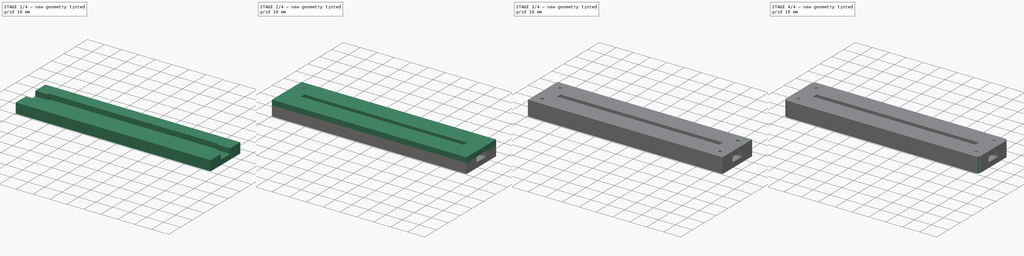
[diagram: build sequence overview — one tinted view per stage of 4, left to right]
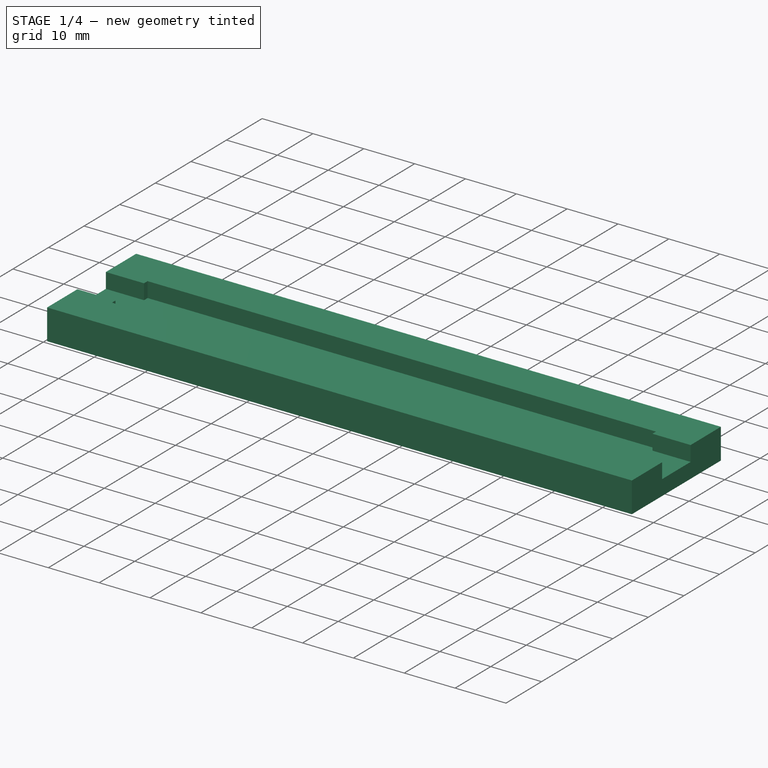
[diagram: stage 1 of 4 — iso view after this stage's code; geometry added in this stage tinted green]
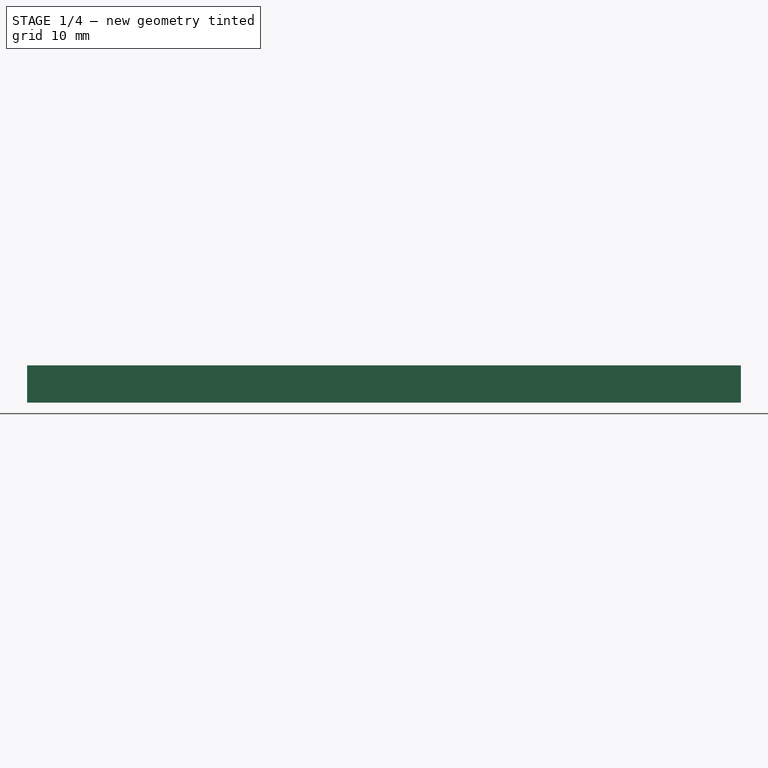
[diagram: stage 1 of 4 — front view after this stage's code; geometry added in this stage tinted green]
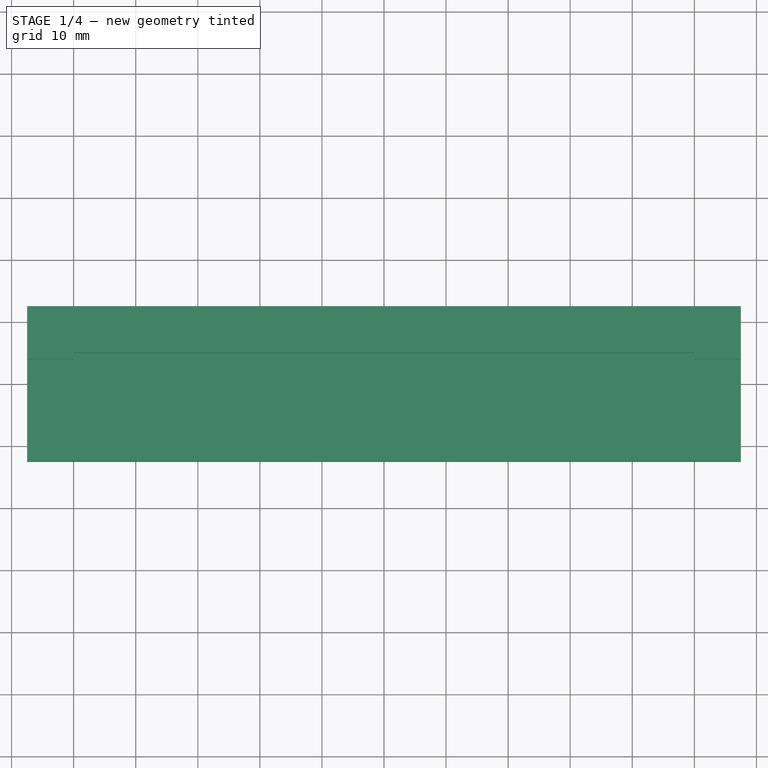
[diagram: stage 1 of 4 — top view after this stage's code; geometry added in this stage tinted green]
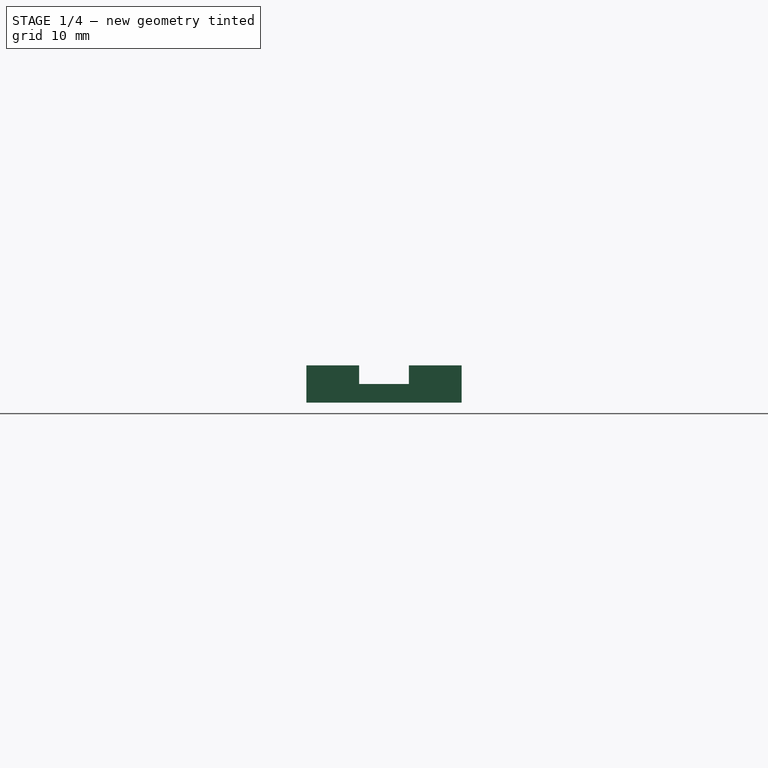
[diagram: stage 1 of 4 — right view after this stage's code; geometry added in this stage tinted green]
FCSTD DOCUMENT  (FreeCAD 0.17R13541 (Git))
Label: Acry-Base-6-good-sandwich-dialed-led-slots-small-screw-holes-rounded-bigger-more-screw-room-lily-tiny-hole
License: All rights reserved
LicenseURL: http://en.wikipedia.org/wiki/All_rights_reserved
objects: Sketcher::SketchObject×5, PartDesign::Pad×3, PartDesign::PolarPattern×3, PartDesign::Pocket×2, PartDesign::Fillet×1, PartDesign::Body×1, App::Part×1
note: 20 computed .brp shape members not serialized (recipe doc carries the construction recipe); baked Part::Feature solids carry a one-line shape summary decoded from their .brp

FEATURE [Sketcher::SketchObject] Sketch
  MapMode = 5
  Support = -> [XY_Plane001]
  sketch-geometry (6):
    g0: LineSegment StartX=-57.5 StartY=12.5 StartZ=0 EndX=57.5 EndY=12.5 EndZ=0
    g1: LineSegment StartX=57.5 StartY=12.5 StartZ=0 EndX=57.5 EndY=-12.5 EndZ=0
    g2: LineSegment StartX=57.5 StartY=-12.5 StartZ=0 EndX=-57.5 EndY=-12.5 EndZ=0
    g3: LineSegment StartX=-57.5 StartY=-12.5 StartZ=0 EndX=-57.5 EndY=12.5 EndZ=0
    g4: GeomPoint X=0 Y=12.5 Z=0
    g5: GeomPoint X=-57.5 Y=0 Z=0
  constraints (16):
    c: Coincident(g0,g1)
    c: Coincident(g1,g2)
    c: Coincident(g2,g3)
    c: Coincident(g3,g0)
    c: Horizontal(g0)
    c: Horizontal(g2)
    c: Vertical(g1)
    c: Vertical(g3)
    c: Distance(g0) = 115
    c: Distance(g1) = 25
    c: PointOnObject(g4,g0)
    c: PointOnObject(g5,g3)
    c: Symmetric(g0,g2,g5)
    c: Symmetric(g0,g0,g4)
    c: PointOnObject(g4,g-2)
    c: PointOnObject(g5,g-1)
FEATURE [PartDesign::Pad] Pad
  Length = 3
  Length2 = 100
  Profile = -> Sketch
  Type = 0
FEATURE [Sketcher::SketchObject] Sketch001
  ExternalGeometry = -> [Pad]
  MapMode = 5
  Placement = pos=(0,0,3) rot=(0,0,1;0rad)
  Support = -> [Pad]
  sketch-geometry (18):
    g0: LineSegment StartX=-57.5 StartY=12.5 StartZ=0 EndX=57.5 EndY=12.5 EndZ=0
    g1: LineSegment StartX=57.5 StartY=12.5 StartZ=0 EndX=57.5 EndY=4 EndZ=0
    g2: LineSegment StartX=-57.5 StartY=4 StartZ=0 EndX=-57.5 EndY=12.5 EndZ=0
    g3: LineSegment StartX=-57.5 StartY=-12.5 StartZ=0 EndX=57.5 EndY=-12.5 EndZ=0
    g4: LineSegment StartX=57.5 StartY=-12.5 StartZ=0 EndX=57.5 EndY=-4 EndZ=0
    g5: LineSegment StartX=-57.5 StartY=-4 StartZ=0 EndX=-57.5 EndY=-12.5 EndZ=0
    g6: LineSegment StartX=-57.5 StartY=-4 StartZ=0 EndX=-50 EndY=-4 EndZ=0
    g7: LineSegment StartX=-50 StartY=-4 StartZ=0 EndX=-50 EndY=-5 EndZ=0
    g8: LineSegment StartX=-50 StartY=-5 StartZ=0 EndX=50 EndY=-5 EndZ=0
    g9: LineSegment StartX=50 StartY=-5 StartZ=0 EndX=50 EndY=-4 EndZ=0
    g10: LineSegment StartX=50 StartY=-4 StartZ=0 EndX=57.5 EndY=-4 EndZ=0
    g11: GeomPoint X=0 Y=-5 Z=0
    g12: LineSegment StartX=57.5 StartY=4 StartZ=0 EndX=50 EndY=4 EndZ=0
    g13: LineSegment StartX=50 StartY=4 StartZ=0 EndX=50 EndY=5 EndZ=0
    g14: LineSegment StartX=50 StartY=5 StartZ=0 EndX=-50 EndY=5 EndZ=0
    g15: LineSegment StartX=-50 StartY=5 StartZ=0 EndX=-50 EndY=4 EndZ=0
    g16: LineSegment StartX=-50 StartY=4 StartZ=0 EndX=-57.5 EndY=4 EndZ=0
    g17: GeomPoint X=0 Y=5 Z=0
  constraints (50):
    c: Coincident(g0,g1)
    c: Coincident(g2,g0)
    c: Horizontal(g0)
    c: Vertical(g1)
    c: Vertical(g2)
    c: Coincident(g0,g-4)
    c: PointOnObject(g1,g-6)
    c: Coincident(g3,g4)
    c: Coincident(g5,g3)
    c: Horizontal(g3)
    c: Vertical(g4)
    c: Vertical(g5)
    c: Coincident(g3,g-5)
    c: PointOnObject(g4,g-6)
    c: Distance(g2,g-1) = 4
    c: Distance(g5,g-1) = 4
    c: Coincident(g5,g6)
    c: Horizontal(g6)
    c: Coincident(g6,g7)
    c: Vertical(g7)
    c: Coincident(g7,g8)
    c: Horizontal(g8)
    c: Coincident(g8,g9)
    c: Vertical(g9)
    c: Coincident(g9,g10)
    c: Coincident(g10,g4)
    c: Horizontal(g10)
    c: Distance(g4,g-1) = 4
    c: Distance(g8,g-1) = 5
    c: Distance(g8) = 100
    c: PointOnObject(g11,g8)
    c: Symmetric(g7,g8,g11)
    c: PointOnObject(g11,g-2)
    c: Coincident(g1,g12)
    c: Horizontal(g12)
    c: Coincident(g12,g13)
    c: Coincident(g13,g14)
    c: Horizontal(g14)
    c: Coincident(g14,g15)
    c: Vertical(g15)
    c: Coincident(g15,g16)
    c: Coincident(g16,g2)
    c: Horizontal(g16)
    c: PointOnObject(g17,g14)
    c: PointOnObject(g17,g-2)
    c: Distance(g14) = 100
    c: Vertical(g13)
    c: Symmetric(g13,g14,g17)
    c: Distance(g17,g-1) = 5
    c: Distance(g1,g-1) = 4
FEATURE [PartDesign::Pad] Pad001
  BaseFeature = -> Pad
  Length = 3
  Length2 = 100
  Profile = -> Sketch001
  Type = 0
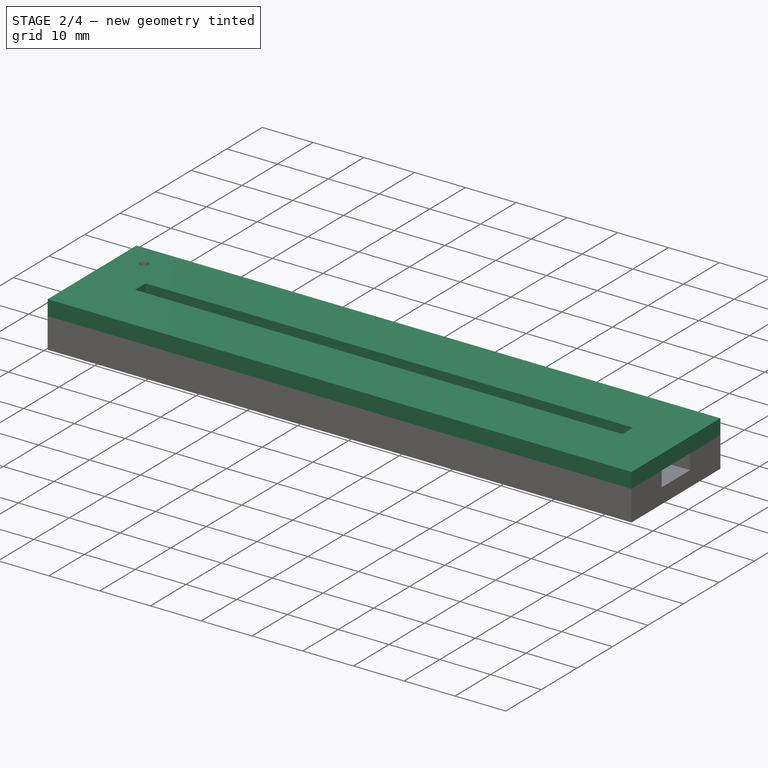
[diagram: stage 2 of 4 — iso view after this stage's code; geometry added in this stage tinted green]
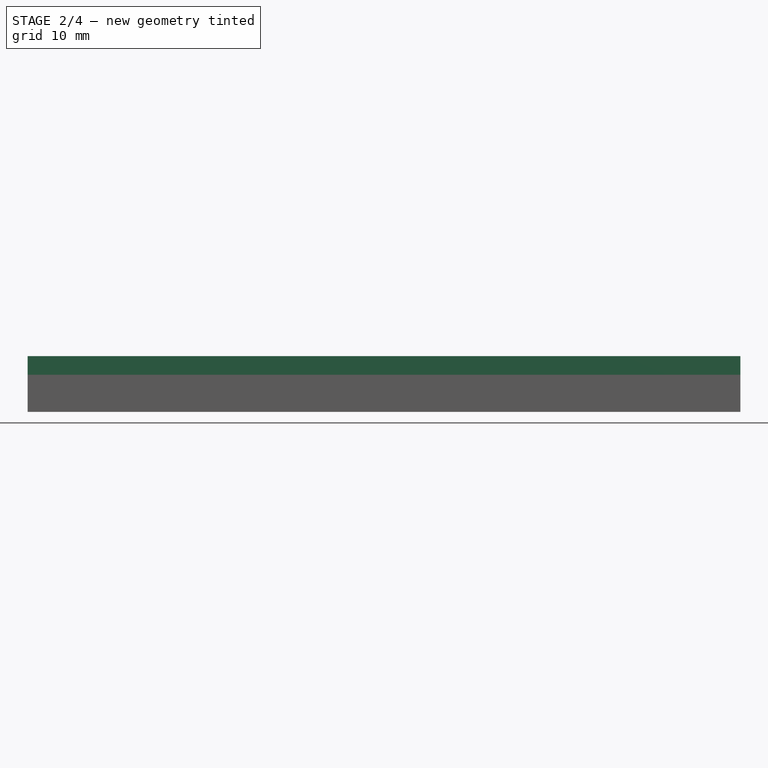
[diagram: stage 2 of 4 — front view after this stage's code; geometry added in this stage tinted green]
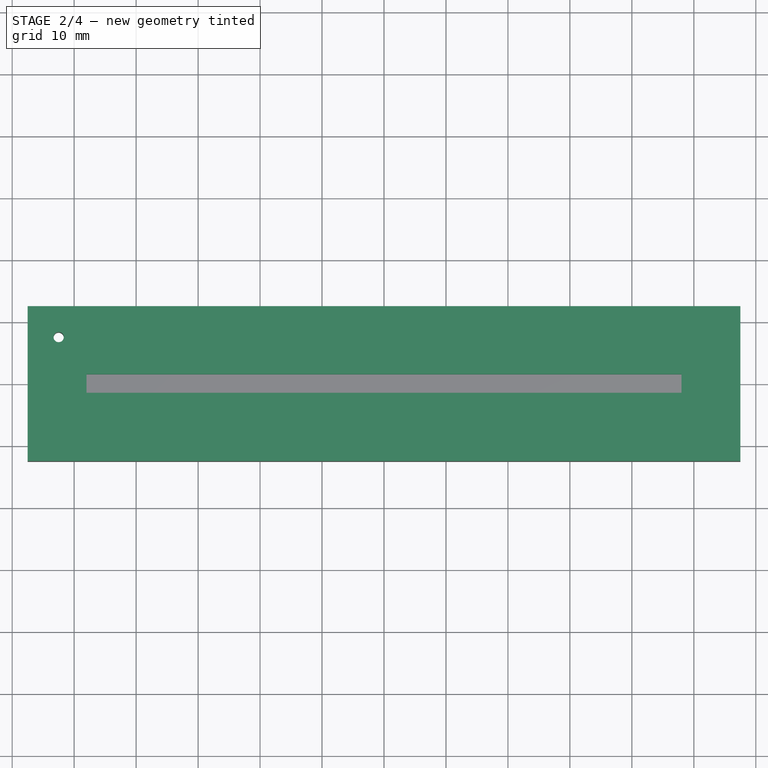
[diagram: stage 2 of 4 — top view after this stage's code; geometry added in this stage tinted green]
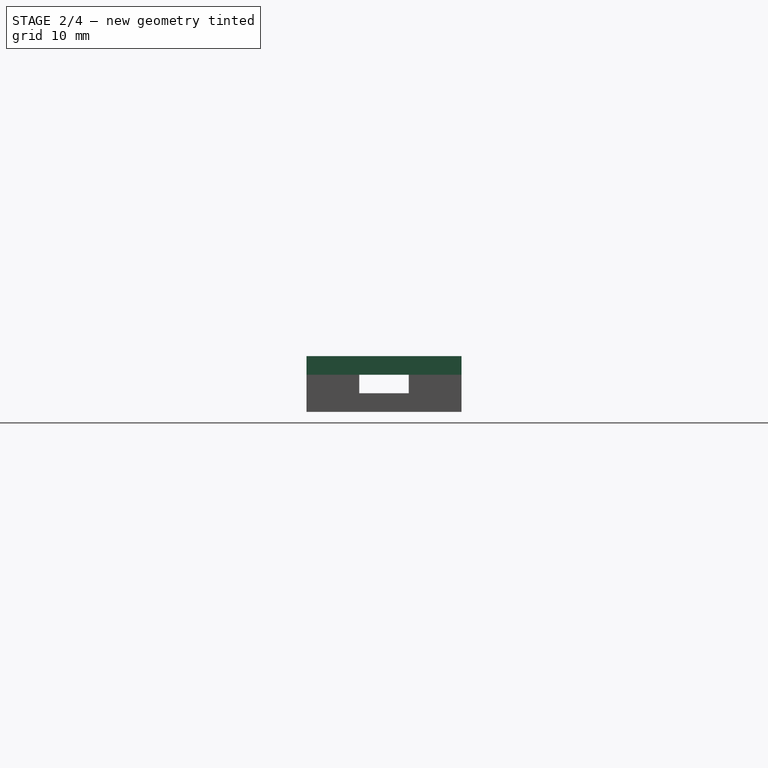
[diagram: stage 2 of 4 — right view after this stage's code; geometry added in this stage tinted green]
FEATURE [Sketcher::SketchObject] Sketch002
  ExternalGeometry = -> [Pad001]
  MapMode = 5
  Placement = pos=(0,0,6) rot=(0,0,1;0rad)
  Support = -> [Pad001]
  sketch-geometry (10):
    g0: LineSegment StartX=-57.5 StartY=12.5 StartZ=0 EndX=57.5 EndY=12.5 EndZ=0
    g1: LineSegment StartX=57.5 StartY=12.5 StartZ=0 EndX=57.5 EndY=-12.5 EndZ=0
    g2: LineSegment StartX=57.5 StartY=-12.5 StartZ=0 EndX=-57.5 EndY=-12.5 EndZ=0
    g3: LineSegment StartX=-57.5 StartY=-12.5 StartZ=0 EndX=-57.5 EndY=12.5 EndZ=0
    g4: LineSegment StartX=-48 StartY=1.5 StartZ=0 EndX=48 EndY=1.5 EndZ=0
    g5: LineSegment StartX=48 StartY=1.5 StartZ=0 EndX=48 EndY=-1.5 EndZ=0
    g6: LineSegment StartX=48 StartY=-1.5 StartZ=0 EndX=-48 EndY=-1.5 EndZ=0
    g7: LineSegment StartX=-48 StartY=-1.5 StartZ=0 EndX=-48 EndY=1.5 EndZ=0
    g8: GeomPoint X=0 Y=1.5 Z=0
    g9: GeomPoint X=-48 Y=0 Z=0
  constraints (26):
    c: Coincident(g0,g1)
    c: Coincident(g1,g2)
    c: Coincident(g2,g3)
    c: Coincident(g3,g0)
    c: Horizontal(g0)
    c: Horizontal(g2)
    c: Vertical(g1)
    c: Vertical(g3)
    c: Coincident(g0,g-4)
    c: Coincident(g1,g-7)
    c: Coincident(g4,g5)
    c: Coincident(g5,g6)
    c: Coincident(g6,g7)
    c: Coincident(g7,g4)
    c: Horizontal(g4)
    c: Horizontal(g6)
    c: Vertical(g5)
    c: Vertical(g7)
    c: Distance(g7) = 3
    c: Distance(g4) = 96
    c: PointOnObject(g8,g4)
    c: PointOnObject(g9,g7)
    c: Symmetric(g4,g4,g8)
    c: Symmetric(g4,g6,g9)
    c: PointOnObject(g8,g-2)
    c: PointOnObject(g9,g-1)
FEATURE [PartDesign::Pad] Pad002
  BaseFeature = -> Pad001
  Length = 3
  Length2 = 100
  Profile = -> Sketch002
  Type = 0
FEATURE [Sketcher::SketchObject] Sketch003
  ExternalGeometry = -> [Pad002]
  MapMode = 5
  Placement = pos=(0,0,9) rot=(0,0,1;0rad)
  Support = -> [Pad002]
  sketch-geometry (2):
    g0: Circle CenterX=-52.5 CenterY=7.5 CenterZ=0 NormalX=0 NormalY=0 NormalZ=1 AngleXU=0 Radius=0.825
    g1: GeomPoint X=-51.7314 Y=7.79969 Z=0
  constraints (4):
    c: PointOnObject(g1,g0)
    c: Distance(g0,g1) = 0.825
    c: Distance(g0,g-3) = 5
    c: Distance(g0,g-4) = 5
FEATURE [PartDesign::Pocket] Pocket
  BaseFeature = -> Pad002
  Length = 5
  Length2 = 100
  Profile = -> Sketch003
  Type = 1
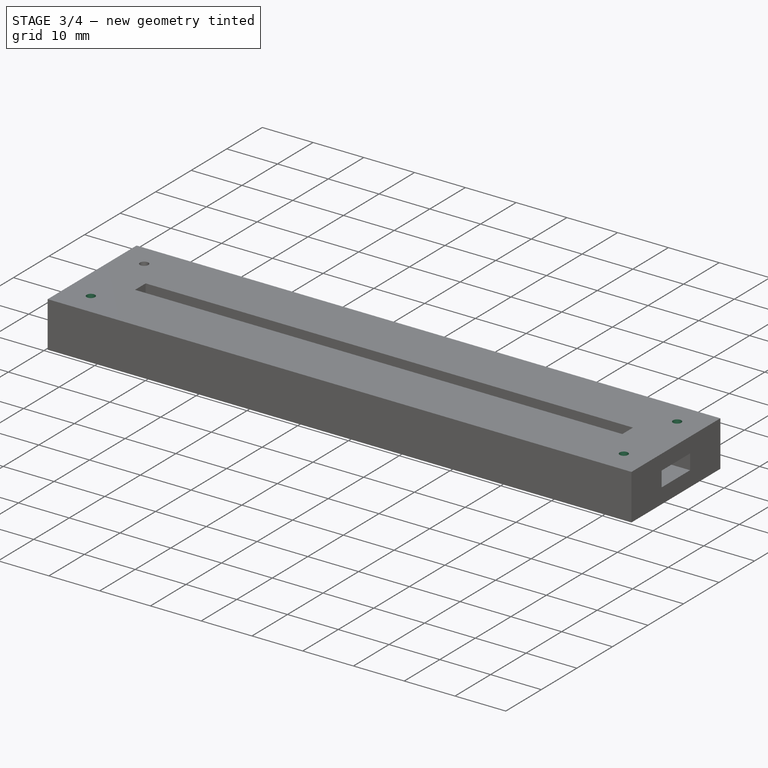
[diagram: stage 3 of 4 — iso view after this stage's code; geometry added in this stage tinted green]
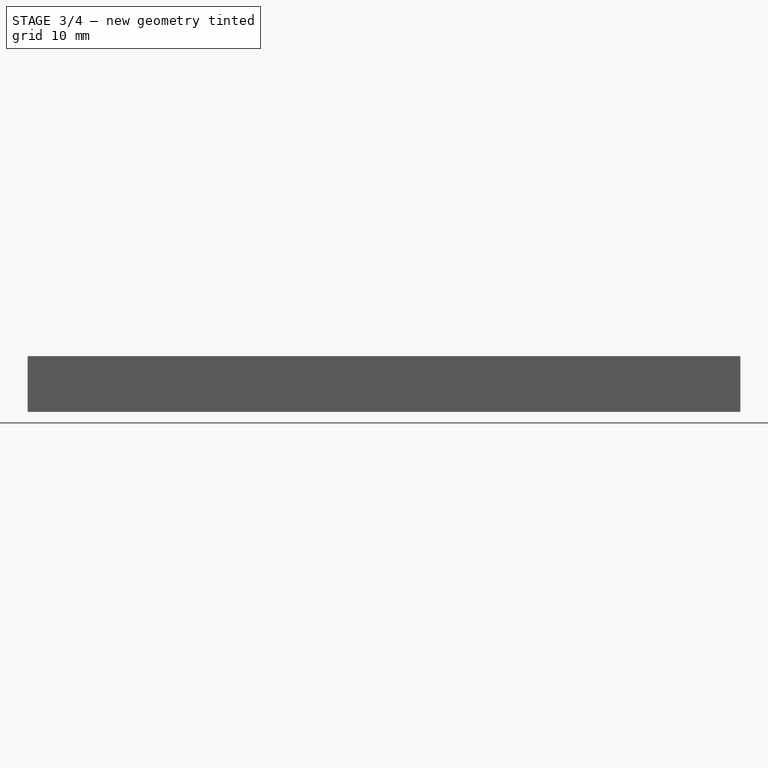
[diagram: stage 3 of 4 — front view after this stage's code; geometry added in this stage tinted green]
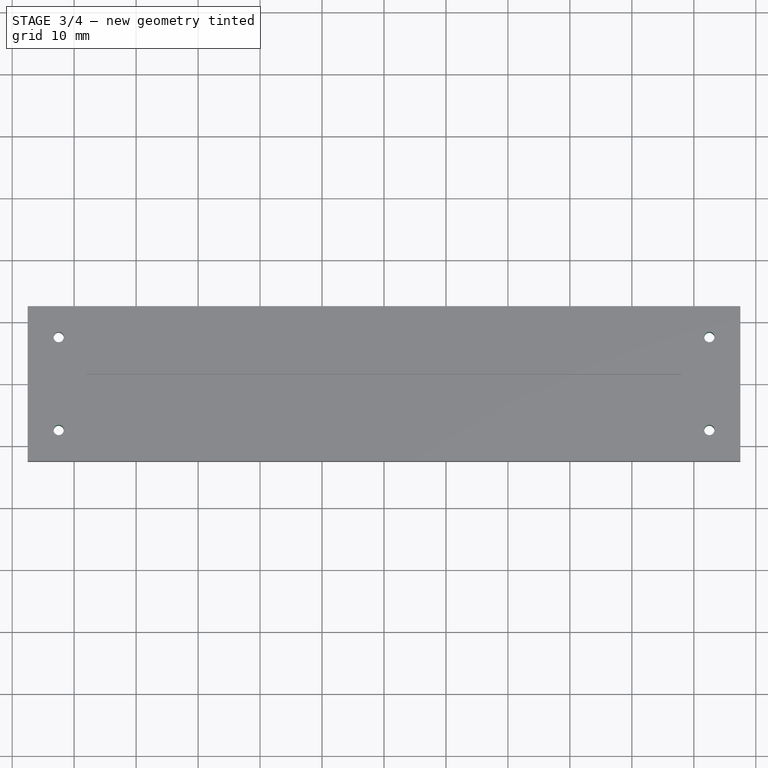
[diagram: stage 3 of 4 — top view after this stage's code; geometry added in this stage tinted green]
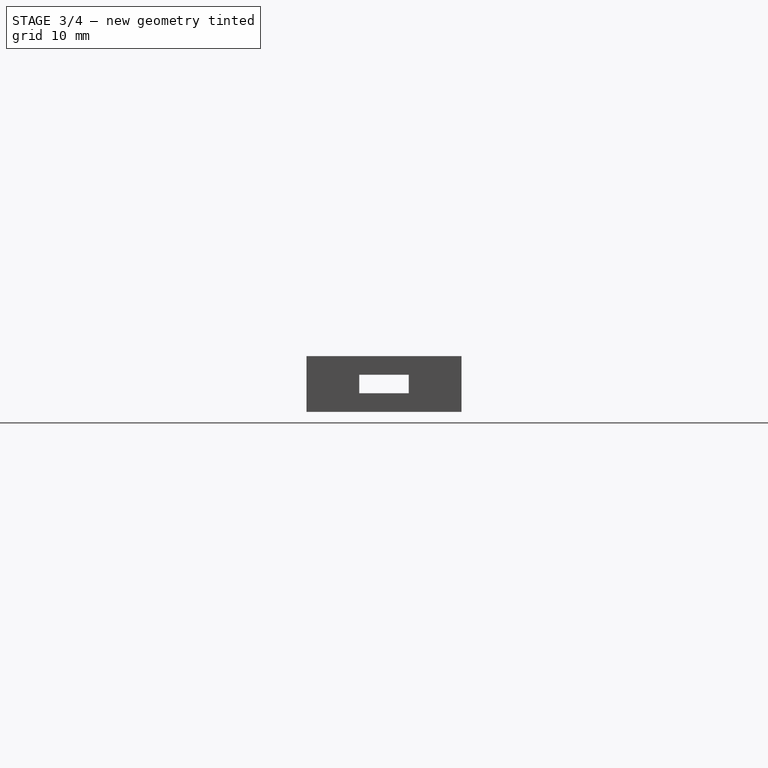
[diagram: stage 3 of 4 — right view after this stage's code; geometry added in this stage tinted green]
FEATURE [PartDesign::PolarPattern] PolarPattern
  Angle = 360
  Axis = -> Y_Axis001
  BaseFeature = -> Pocket
  Occurrences = 2
  Originals = -> [Pocket]
FEATURE [PartDesign::PolarPattern] PolarPattern001
  Angle = 360
  Axis = -> X_Axis001
  BaseFeature = -> PolarPattern
  Occurrences = 2
  Originals = -> [Pocket]
FEATURE [PartDesign::PolarPattern] PolarPattern002
  Angle = 360
  Axis = -> Sketch003 [N_Axis]
  BaseFeature = -> PolarPattern001
  Occurrences = 2
  Originals = -> [Pocket]
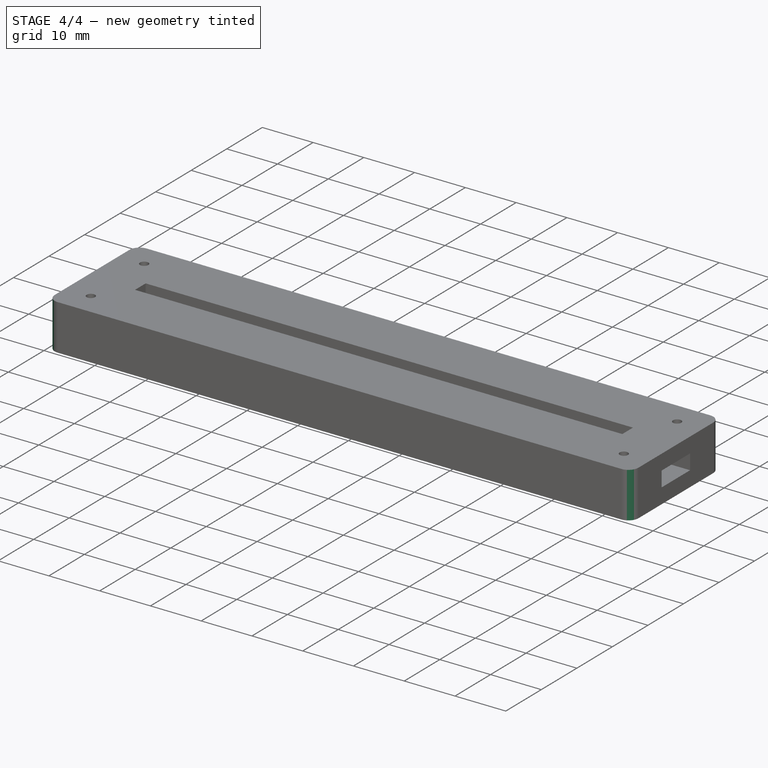
[diagram: stage 4 of 4 — iso view after this stage's code; geometry added in this stage tinted green]
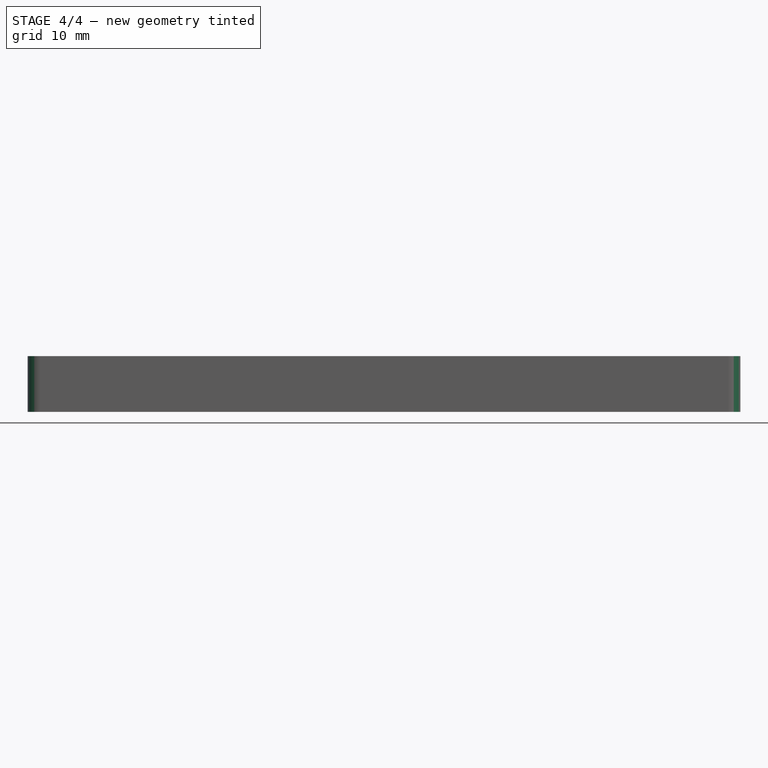
[diagram: stage 4 of 4 — front view after this stage's code; geometry added in this stage tinted green]
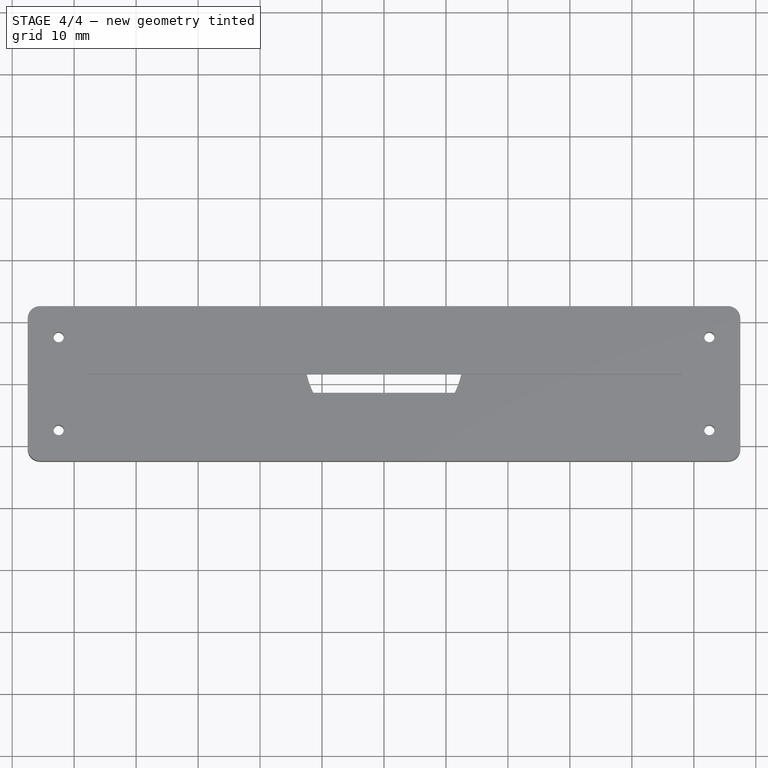
[diagram: stage 4 of 4 — top view after this stage's code; geometry added in this stage tinted green]
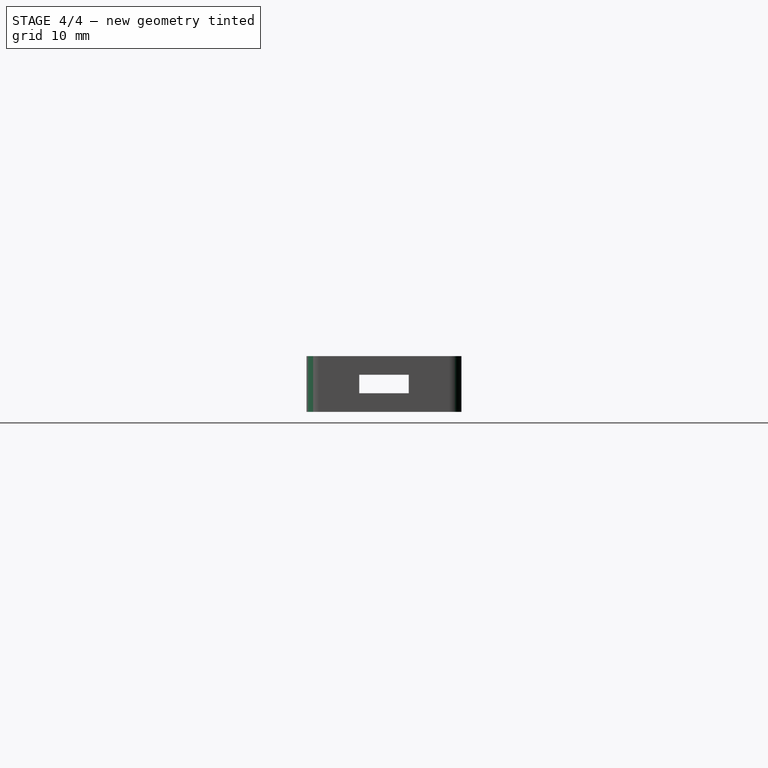
[diagram: stage 4 of 4 — right view after this stage's code; geometry added in this stage tinted green]
FEATURE [PartDesign::Fillet] Fillet
  Base = -> PolarPattern002 [Edge53,Edge21,Edge2,Edge77,Edge52,Edge58]
  BaseFeature = -> PolarPattern002
  Radius = 2
FEATURE [Sketcher::SketchObject] Sketch004
  ExternalGeometry = -> [Fillet]
  MapMode = 5
  Placement = pos=(0,0,0) rot=(1,0,0;3.14159rad)
  Support = -> [Fillet]
  sketch-geometry (2):
    g0: Circle CenterX=0 CenterY=-4.31247 CenterZ=0 NormalX=0 NormalY=0 NormalZ=1 AngleXU=0 Radius=12.75
    g1: GeomPoint X=11.838 Y=0.422929 Z=0
  constraints (3):
    c: PointOnObject(g0,g-2)
    c: PointOnObject(g1,g0)
    c: Distance(g0,g1) = 12.75
FEATURE [PartDesign::Pocket] Pocket001
  BaseFeature = -> Fillet
  Length = 3
  Length2 = 100
  Profile = -> Sketch004
  Type = 0
FEATURE [PartDesign::Body] Body
  Group = -> [Sketch,Pad,Sketch001,Pad001,Sketch002,Pad002,Sketch003,Pocket,PolarPattern,PolarPattern001,PolarPattern002,Fillet,Sketch004,Pocket001]
  Origin = -> Origin001
  Tip = -> Pocket001
FEATURE [App::Part] Part
  Group = -> [Body]
  License = CC BY 3.0
  LicenseURL = http://creativecommons.org/licenses/by/3.0/
  Origin = -> Origin
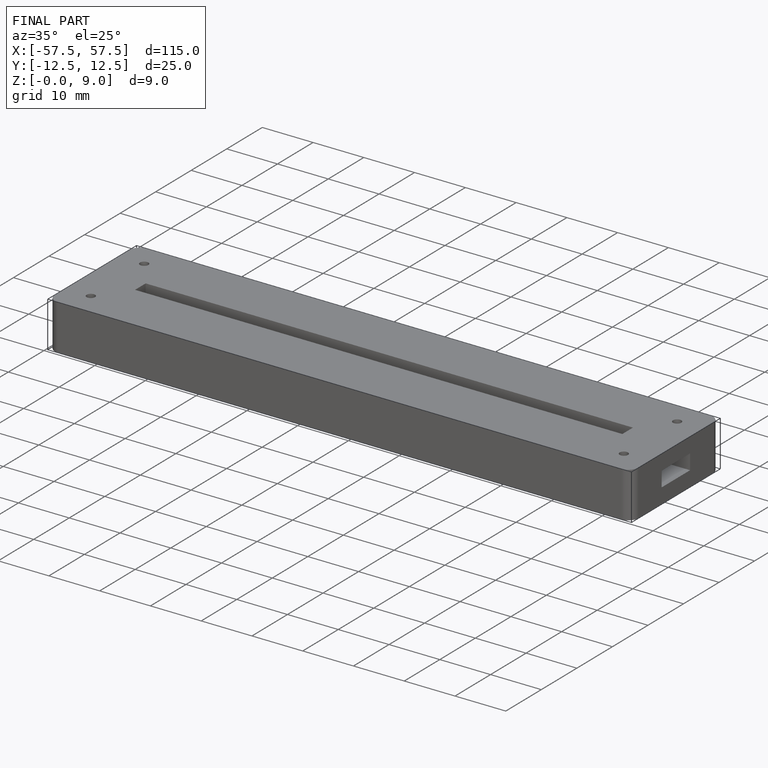
[diagram: finished part — iso view with bounding-box wireframe]
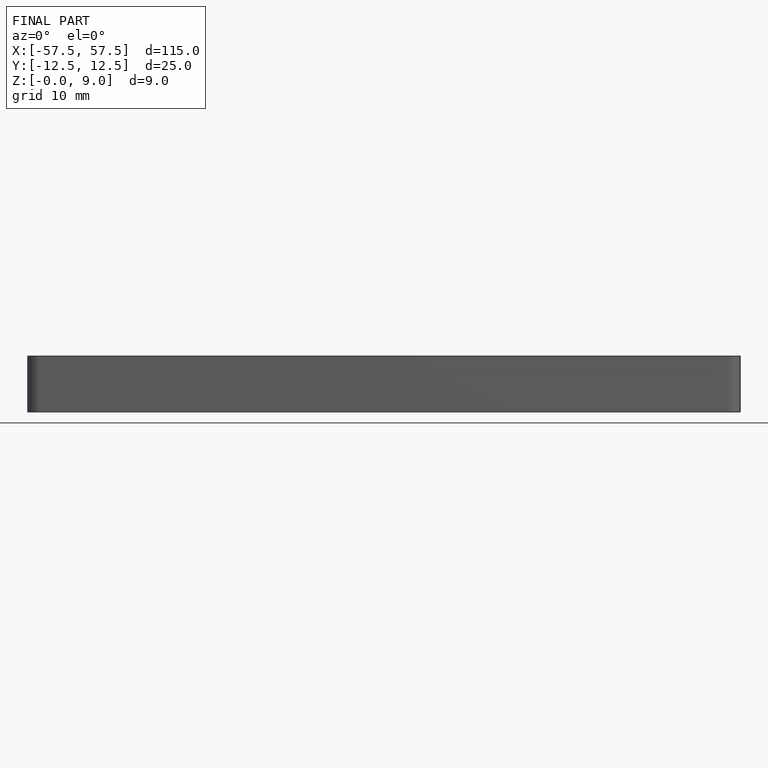
[diagram: finished part — front view with bounding-box wireframe]
